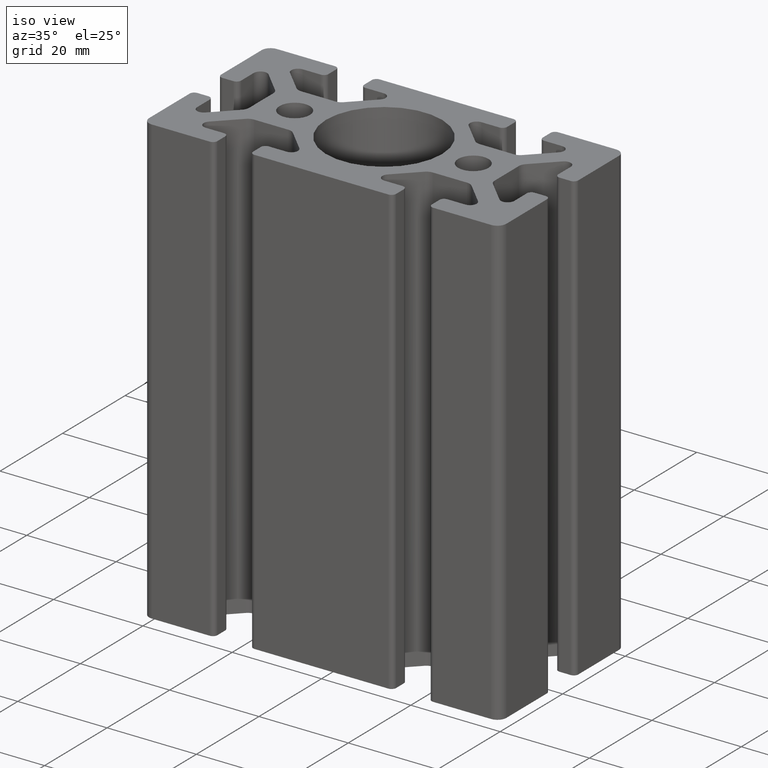
[diagram: clean part render]
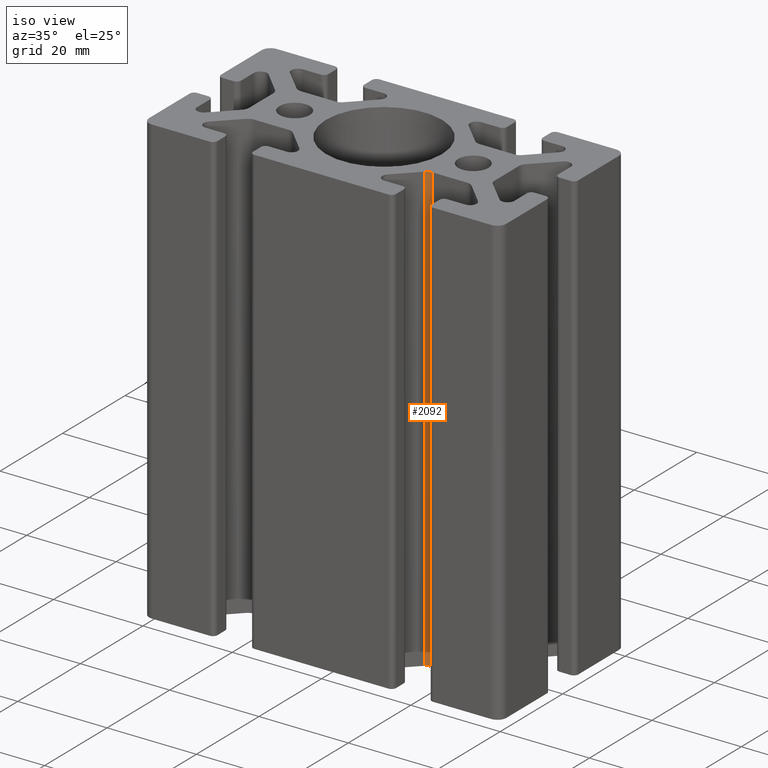
[diagram: same view with one face highlighted and labeled with its STEP entity id]
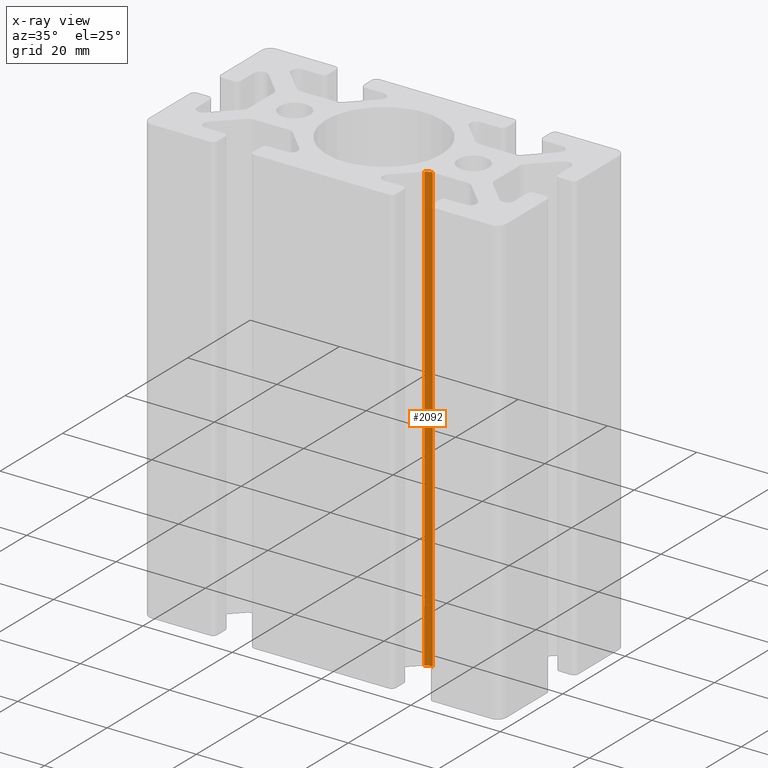
[diagram: x-ray of the same camera — body ghosted, the highlighted face saturated]
A machine part, iso view. The second image highlights one B-rep face of the part: STEP entity #2092.
The next image is the same camera in x-ray: the body ghosted, the highlighted face saturated — about 22% of this face is hidden behind the body in this view.
In plain terms, the highlighted cylindrical surface (edge-blend (fillet) strip) has radius 2 mm, axis along (0, 0, 1).
Its self-contained STEP definition (entity closure, byte-faithful):
#86=LINE('',#3266,#294);
#87=LINE('',#3272,#295);
#294=VECTOR('',#2617,100.);
#295=VECTOR('',#2624,100.);
#532=FACE_OUTER_BOUND('',#644,.T.);
#644=EDGE_LOOP('',(#1509,#1510,#1511,#1512));
#763=CIRCLE('',#2246,2.00000000000001);
#764=CIRCLE('',#2247,2.00000000000001);
#911=VERTEX_POINT('',#3262);
#912=VERTEX_POINT('',#3264);
#913=VERTEX_POINT('',#3268);
#914=VERTEX_POINT('',#3270);
#1158=EDGE_CURVE('',#912,#911,#86,.T.);
#1159=EDGE_CURVE('',#911,#913,#763,.T.);
#1160=EDGE_CURVE('',#914,#912,#764,.T.);
#1161=EDGE_CURVE('',#914,#913,#87,.T.);
#1509=ORIENTED_EDGE('',*,*,#1159,.F.);
#1510=ORIENTED_EDGE('',*,*,#1158,.F.);
#1511=ORIENTED_EDGE('',*,*,#1160,.F.);
#1512=ORIENTED_EDGE('',*,*,#1161,.T.);
#2020=CYLINDRICAL_SURFACE('',#2245,2.00000000000001);
#2092=ADVANCED_FACE('',(#532),#2020,.F.);
#2245=AXIS2_PLACEMENT_3D('',#3267,#2618,#2619);
#2246=AXIS2_PLACEMENT_3D('',#3269,#2620,#2621);
#2247=AXIS2_PLACEMENT_3D('',#3271,#2622,#2623);
#2617=DIRECTION('',(0.,0.,1.));
#2618=DIRECTION('center_axis',(0.,0.,1.));
#2619=DIRECTION('ref_axis',(0.,1.,0.));
#2620=DIRECTION('center_axis',(0.,0.,-1.));
#2621=DIRECTION('ref_axis',(0.,1.,0.));
#2622=DIRECTION('center_axis',(0.,0.,1.));
#2623=DIRECTION('ref_axis',(0.,1.,0.));
#2624=DIRECTION('',(0.,0.,1.));
#3262=CARTESIAN_POINT('',(14.7426406871193,-8.0857864376269,100.));
#3264=CARTESIAN_POINT('',(14.7426406871193,-8.0857864376269,0.));
#3266=CARTESIAN_POINT('',(14.7426406871193,-8.0857864376269,0.));
#3267=CARTESIAN_POINT('Origin',(16.1568542494924,-9.50000000000001,0.));
#3268=CARTESIAN_POINT('',(16.1568542494924,-7.5,100.));
#3269=CARTESIAN_POINT('Origin',(16.1568542494924,-9.50000000000001,100.));
#3270=CARTESIAN_POINT('',(16.1568542494924,-7.5,0.));
#3271=CARTESIAN_POINT('Origin',(16.1568542494924,-9.50000000000001,0.));
#3272=CARTESIAN_POINT('',(16.1568542494924,-7.5,0.));